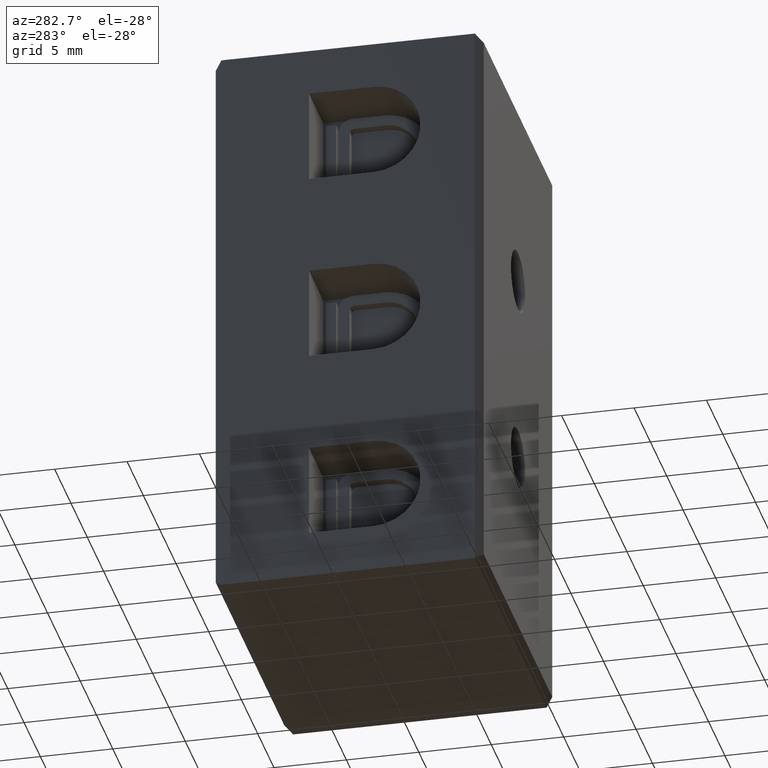
[diagram: clean part render]
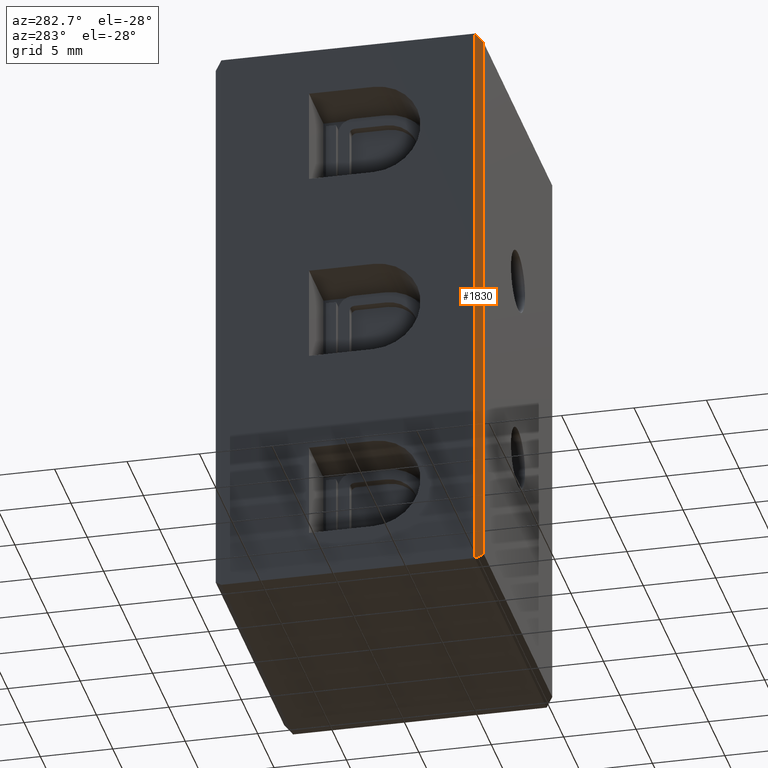
[diagram: same view with one face highlighted and labeled with its STEP entity id]
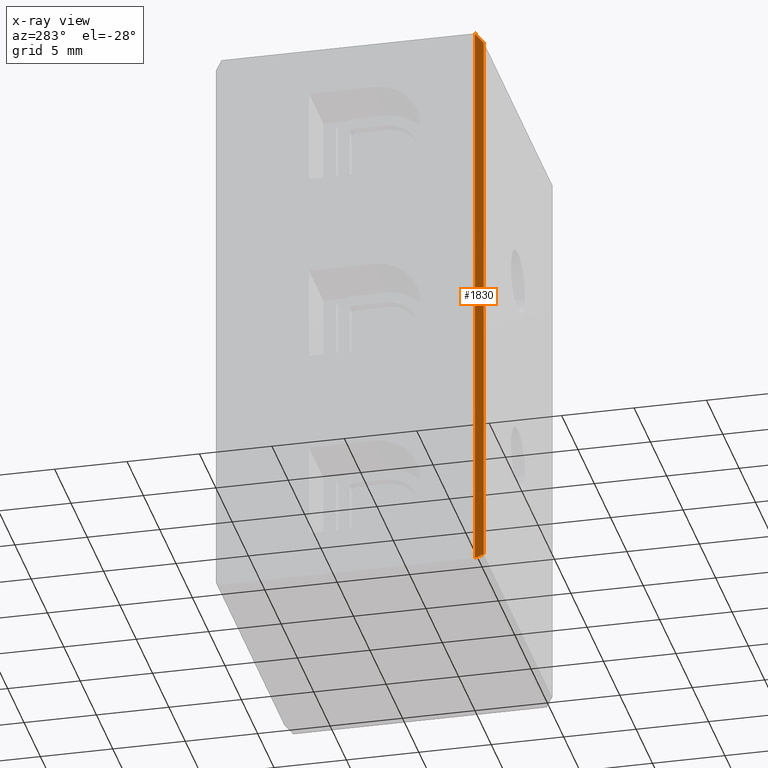
[diagram: x-ray of the same camera — body ghosted, the highlighted face saturated]
A machine part, auxiliary view. The second image highlights one B-rep face of the part: STEP entity #1830.
The next image is the same camera in x-ray: the body ghosted, the highlighted face saturated — about 0% of this face is hidden behind the body in this view.
In plain terms, the highlighted planar face has unit normal (-0.7071, -0.7071, 0).
Its self-contained STEP definition (entity closure, byte-faithful):
#271 = EDGE_LOOP ( 'NONE', ( #4524, #4529, #3226, #4504 ) ) ;
#485 = VERTEX_POINT ( 'NONE', #4638 ) ;
#493 = VERTEX_POINT ( 'NONE', #4663 ) ;
#514 = VERTEX_POINT ( 'NONE', #4631 ) ;
#517 = VERTEX_POINT ( 'NONE', #4632 ) ;
#1060 = EDGE_CURVE ( 'NONE', #485, #514, #1577, .T. ) ;
#1092 = EDGE_CURVE ( 'NONE', #514, #517, #1746, .T. ) ;
#1131 = EDGE_CURVE ( 'NONE', #493, #517, #1999, .T. ) ;
#1156 = EDGE_CURVE ( 'NONE', #485, #493, #2067, .T. ) ;
#1528 = DIRECTION ( 'NONE',  ( 0.0000000000000000000, -0.0000000000000000000, -1.000000000000000000 ) ) ;
#1577 = LINE ( 'NONE', #1585, #3085 ) ;
#1585 = CARTESIAN_POINT ( 'NONE',  ( 0.5000000000000004400, 0.0000000000000000000, -40.00000000000000000 ) ) ;
#1746 = LINE ( 'NONE', #1771, #3152 ) ;
#1771 = CARTESIAN_POINT ( 'NONE',  ( 0.5000000000000006700, 0.0000000000000000000, -39.50000000000000000 ) ) ;
#1830 = ADVANCED_FACE ( 'NONE', ( #5919 ), #5918, .T. ) ;
#1837 = DIRECTION ( 'NONE',  ( -0.5773502691896259500, 0.5773502691896257300, -0.5773502691896257300 ) ) ;
#1947 = CARTESIAN_POINT ( 'NONE',  ( 0.0000000000000000000, 0.5000000000000004400, 0.0000000000000000000 ) ) ;
#1989 = DIRECTION ( 'NONE',  ( -0.0000000000000000000, -0.0000000000000000000, -1.000000000000000000 ) ) ;
#1999 = LINE ( 'NONE', #1947, #3223 ) ;
#2067 = LINE ( 'NONE', #2121, #2533 ) ;
#2108 = DIRECTION ( 'NONE',  ( -0.5773502691896257300, 0.5773502691896257300, 0.5773502691896259500 ) ) ;
#2121 = CARTESIAN_POINT ( 'NONE',  ( 0.5000000000000004400, 0.0000000000000000000, -0.5000000000000006700 ) ) ;
#2533 = VECTOR ( 'NONE', #2108, 1000.000000000000000 ) ;
#3085 = VECTOR ( 'NONE', #1528, 1000.000000000000000 ) ;
#3152 = VECTOR ( 'NONE', #1837, 1000.000000000000000 ) ;
#3223 = VECTOR ( 'NONE', #1989, 1000.000000000000000 ) ;
#3226 = ORIENTED_EDGE ( 'NONE', *, *, #1092, .F. ) ;
#4504 = ORIENTED_EDGE ( 'NONE', *, *, #1060, .F. ) ;
#4524 = ORIENTED_EDGE ( 'NONE', *, *, #1156, .T. ) ;
#4529 = ORIENTED_EDGE ( 'NONE', *, *, #1131, .T. ) ;
#4631 = CARTESIAN_POINT ( 'NONE',  ( 0.4999999999999990600, 1.535953077687797900E-015, -39.50000000000001400 ) ) ;
#4632 = CARTESIAN_POINT ( 'NONE',  ( -6.969471907443042000E-016, 0.5000000000000012200, -40.00000000000000700 ) ) ;
#4638 = CARTESIAN_POINT ( 'NONE',  ( 0.5000000000000004400, 4.517509052022935300E-017, -0.5000000000000004400 ) ) ;
#4663 = CARTESIAN_POINT ( 'NONE',  ( 2.710505431213761100E-017, 0.5000000000000004400, -5.421010862427523400E-017 ) ) ;
#5918 = PLANE ( 'NONE',  #6962 ) ;
#5919 = FACE_OUTER_BOUND ( 'NONE', #271, .T. ) ;
#5920 = CARTESIAN_POINT ( 'NONE',  ( 0.0000000000000000000, 0.5000000000000004400, 0.0000000000000000000 ) ) ;
#5944 = DIRECTION ( 'NONE',  ( -0.7071067811865475700, -0.7071067811865475700, 0.0000000000000000000 ) ) ;
#5964 = DIRECTION ( 'NONE',  ( 0.7071067811865474600, -0.7071067811865474600, 0.0000000000000000000 ) ) ;
#6962 = AXIS2_PLACEMENT_3D ( 'NONE', #5920, #5944, #5964 ) ;